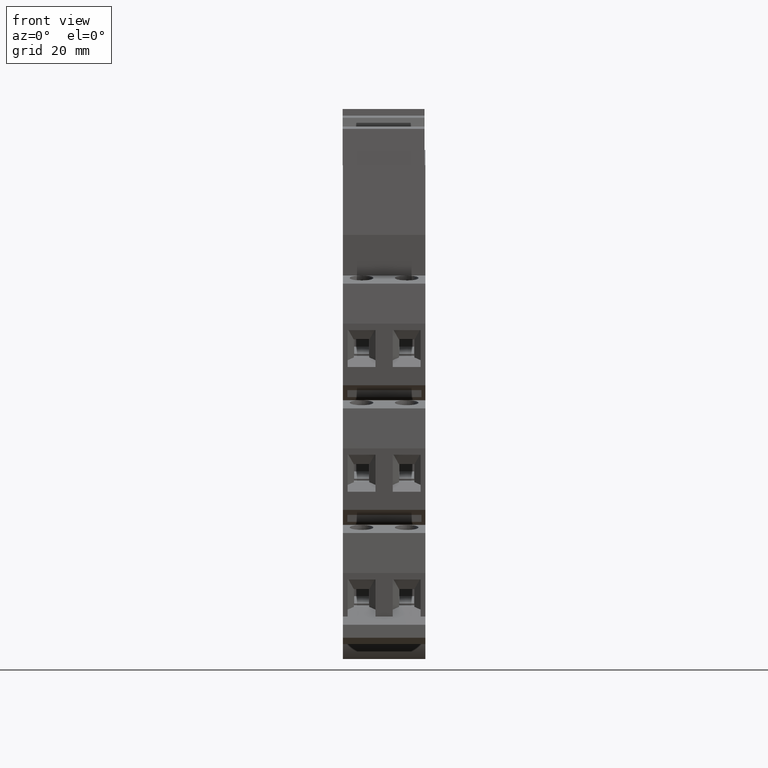
[diagram: clean part render]
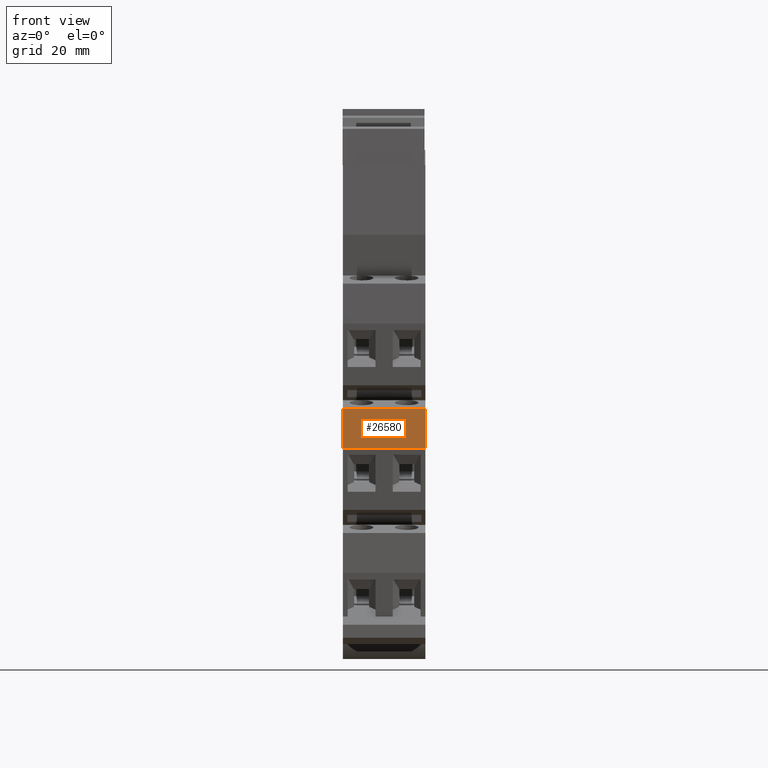
[diagram: same view with one face highlighted and labeled with its STEP entity id]
A machine part, front view. The second image highlights one B-rep face of the part: STEP entity #26580.
In plain terms, the highlighted planar face has unit normal (0, 1, 0).
Its self-contained STEP definition (entity closure, byte-faithful):
#840=CARTESIAN_POINT('',(34.3071599999269,26.4663740067623,
-14.7000000000029));
#850=VERTEX_POINT('',#840);
#880=CARTESIAN_POINT('',(34.3071599999287,51.1058216480286,
-14.7000000000029));
#890=DIRECTION('',(7.52336794680823E-14,1.,-3.81404366214677E-28));
#900=VECTOR('',#890,1.);
#910=LINE('',#880,#900);
#920=CARTESIAN_POINT('',(34.3071599999274,33.1999999999729,
-14.700000000005));
#930=VERTEX_POINT('',#920);
#940=EDGE_CURVE('',#850,#930,#910,.T.);
#7420=CARTESIAN_POINT('',(34.3071599999265,33.1999999999729,
-0.800000000003085));
#7430=VERTEX_POINT('',#7420);
#7460=CARTESIAN_POINT('',(34.3071599999278,51.1058216480286,
-0.800000000002909));
#7470=DIRECTION('',(7.52336794680823E-14,1.,-3.81404366214677E-28));
#7480=VECTOR('',#7470,1.);
#7490=LINE('',#7460,#7480);
#7500=CARTESIAN_POINT('',(34.307159999926,26.4663740067623,
-0.800000000002909));
#7510=VERTEX_POINT('',#7500);
#7520=EDGE_CURVE('',#7510,#7430,#7490,.T.);
#25580=CARTESIAN_POINT('',(34.307159999926,26.4663740067623,
-9.40000000000209));
#25590=DIRECTION('',(-1.89326617253043E-28,-3.52965951279815E-28,-1.));
#25600=VECTOR('',#25590,1.);
#25610=LINE('',#25580,#25600);
#25620=EDGE_CURVE('',#7510,#850,#25610,.T.);
#26420=CARTESIAN_POINT('',(34.3071599999269,26.4663740057823,
-14.7000000000012));
#26430=DIRECTION('',(-1.,7.52336794680823E-14,-6.27941947176454E-14));
#26440=DIRECTION('',(-7.52336794680823E-14,-1.,-4.26389200731639E-28));
#26450=AXIS2_PLACEMENT_3D('',#26420,#26430,#26440);
#26460=PLANE('',#26450);
#26470=ORIENTED_EDGE('',*,*,#940,.T.);
#26480=ORIENTED_EDGE('',*,*,#25620,.T.);
#26490=ORIENTED_EDGE('',*,*,#7520,.F.);
#26500=CARTESIAN_POINT('',(34.3071599999265,33.1999999999729,
-9.40000000000209));
#26510=DIRECTION('',(-1.89326617253043E-28,-3.83485007550553E-28,-1.));
#26520=VECTOR('',#26510,1.);
#26530=LINE('',#26500,#26520);
#26540=EDGE_CURVE('',#7430,#930,#26530,.T.);
#26550=ORIENTED_EDGE('',*,*,#26540,.F.);
#26560=EDGE_LOOP('',(#26550,#26490,#26480,#26470));
#26570=FACE_OUTER_BOUND('',#26560,.T.);
#26580=ADVANCED_FACE('',(#26570),#26460,.F.);